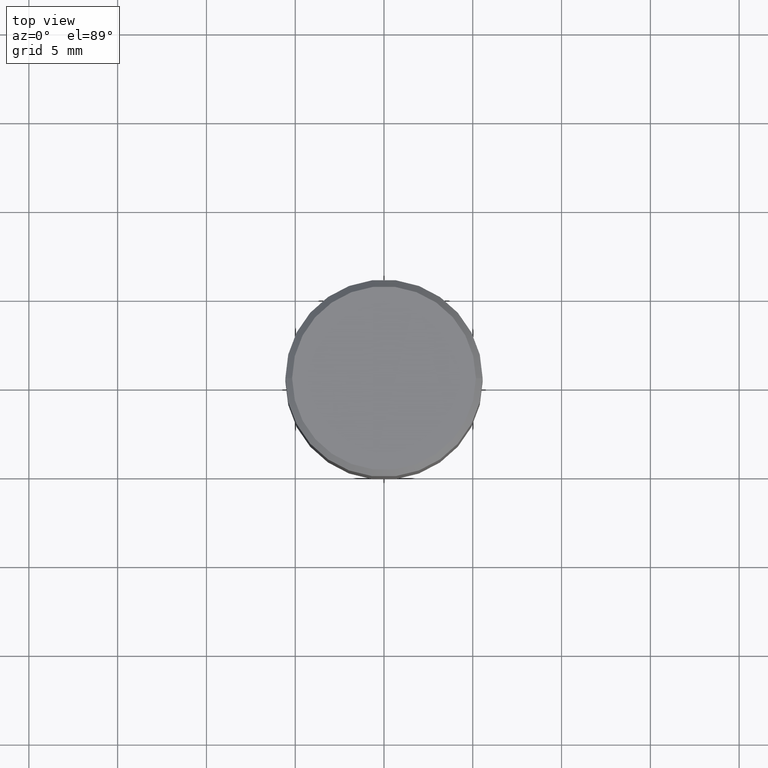
[diagram: clean part render]
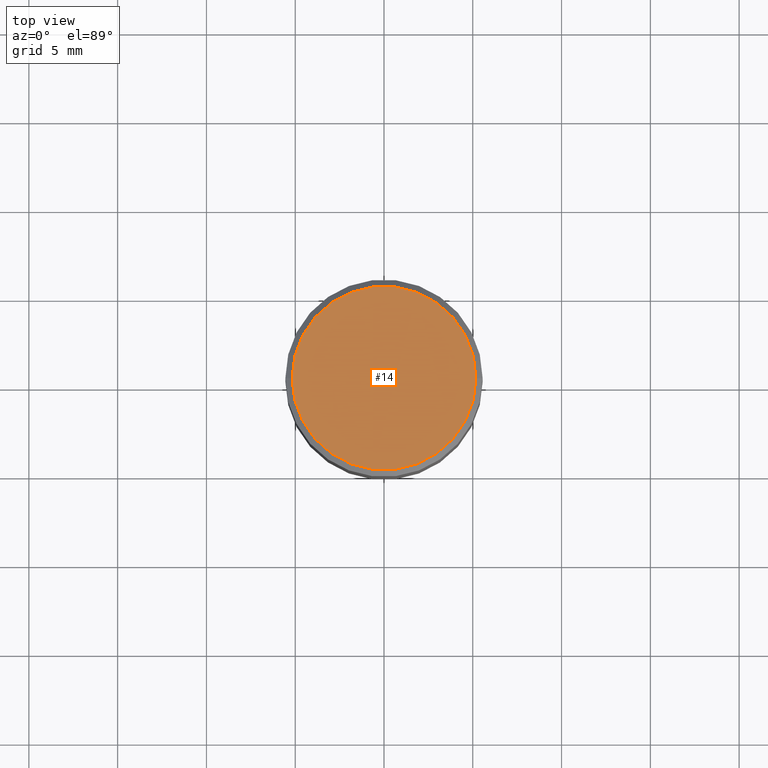
[diagram: same view with one face highlighted and labeled with its STEP entity id]
A machine part, top view. The second image highlights one B-rep face of the part: STEP entity #14.
In plain terms, the highlighted planar face has unit normal (0, -0, -1).
Its self-contained STEP definition (entity closure, byte-faithful):
#13 = EDGE_CURVE ( 'NONE', #232, #96, #72, .T. ) ;
#14 = ADVANCED_FACE ( 'NONE', ( #25 ), #259, .F. ) ;
#16 = CARTESIAN_POINT ( 'NONE',  ( -0.2037499999999999867, 1.448964755619900421E-15, 1.060151966214468518E-16 ) ) ;
#25 = FACE_OUTER_BOUND ( 'NONE', #159, .T. ) ;
#28 = AXIS2_PLACEMENT_3D ( 'NONE', #423, #92, #299 ) ;
#35 = CIRCLE ( 'NONE', #412, 0.2037499999999999867 ) ;
#72 = CIRCLE ( 'NONE', #28, 0.2037499999999999867 ) ;
#92 = DIRECTION ( 'NONE',  ( -2.445468806185136597E-29, 3.491481338843145583E-15, 1.000000000000000000 ) ) ;
#96 = VERTEX_POINT ( 'NONE', #465 ) ;
#126 = CARTESIAN_POINT ( 'NONE',  ( -2.592568563193567003E-45, 3.701500806376036554E-31, 1.060151966214568974E-16 ) ) ;
#143 = EDGE_CURVE ( 'NONE', #96, #232, #35, .T. ) ;
#159 = EDGE_LOOP ( 'NONE', ( #394, #370 ) ) ;
#161 = DIRECTION ( 'NONE',  ( 2.438088387897960049E-29, -3.491481338843145188E-15, -1.000000000000000000 ) ) ;
#199 = AXIS2_PLACEMENT_3D ( 'NONE', #384, #161, #411 ) ;
#232 = VERTEX_POINT ( 'NONE', #16 ) ;
#256 = DIRECTION ( 'NONE',  ( -2.445468806185136597E-29, 3.491481338843145583E-15, 1.000000000000000000 ) ) ;
#259 = PLANE ( 'NONE',  #199 ) ;
#298 = DIRECTION ( 'NONE',  ( 1.000000000000000000, -6.982962677686266711E-15, 4.875065411617369217E-29 ) ) ;
#299 = DIRECTION ( 'NONE',  ( 1.000000000000000000, -6.982962677686266711E-15, 4.875065411617369217E-29 ) ) ;
#370 = ORIENTED_EDGE ( 'NONE', *, *, #143, .T. ) ;
#384 = CARTESIAN_POINT ( 'NONE',  ( 1.422778645578576487E-15, 0.2037499999999999867, -6.583817244785623957E-16 ) ) ;
#394 = ORIENTED_EDGE ( 'NONE', *, *, #13, .T. ) ;
#411 = DIRECTION ( 'NONE',  ( -1.000000000000000000, 6.982962677686265922E-15, -4.876176775795935793E-29 ) ) ;
#412 = AXIS2_PLACEMENT_3D ( 'NONE', #126, #256, #298 ) ;
#423 = CARTESIAN_POINT ( 'NONE',  ( -2.592568563193567003E-45, 3.701500806376036554E-31, 1.060151966214568974E-16 ) ) ;
#465 = CARTESIAN_POINT ( 'NONE',  ( 0.2037499999999999867, -1.475466312070559275E-15, 1.060151966214670170E-16 ) ) ;